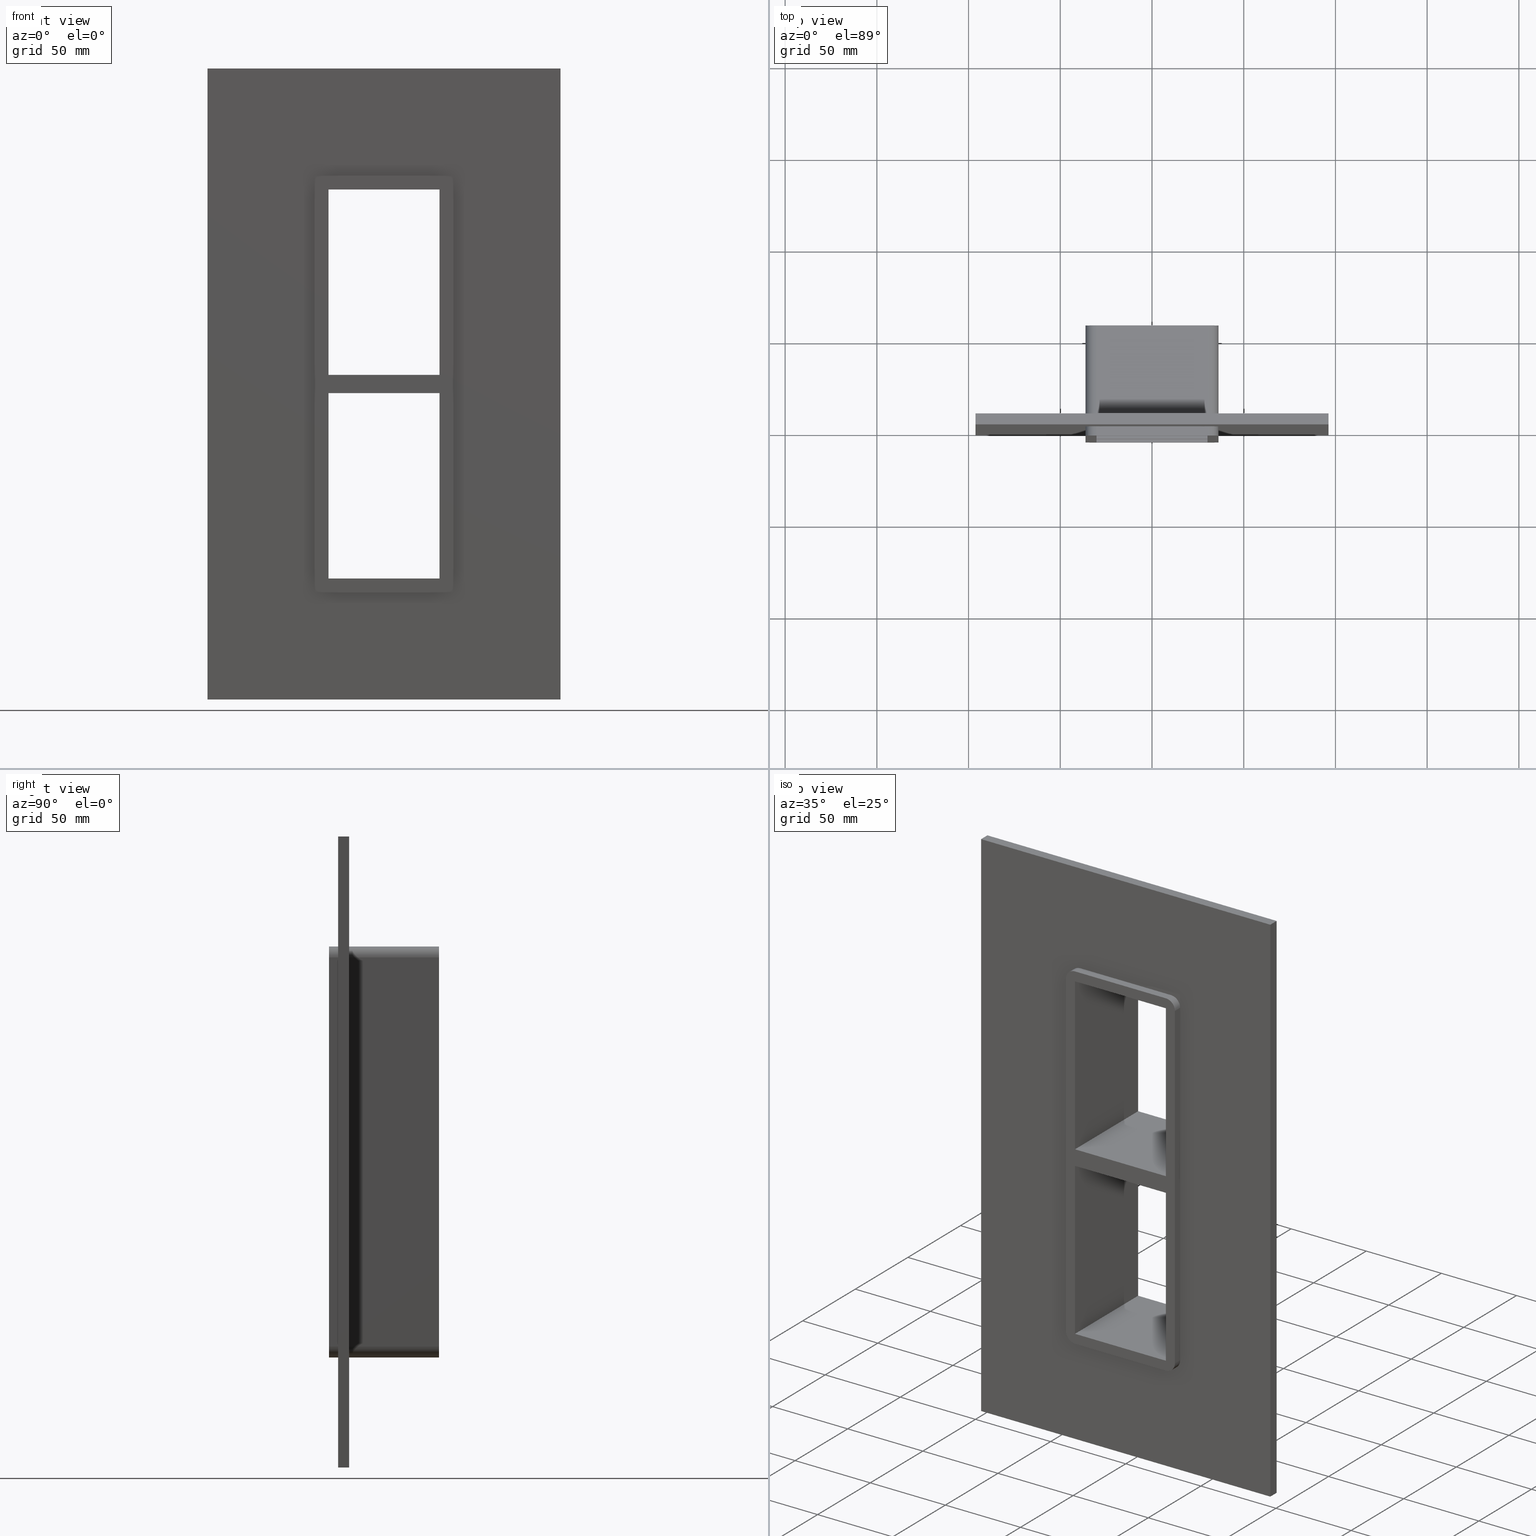
[diagram: canonical four-view strip — front | top / right | iso, engineering-drawing reading convention]
A machine part, canonical four-view strip (front | top / right | iso — engineering-drawing reading convention). The complete STEP part file that produces these views, byte-faithful:
ISO-10303-21;
HEADER;
/****************************************************************
 * Generated by software with PDElib inside                    *
 * PDElib Version v51a, created Wed 11/30/2011                  *
 * ITI Transcendata (http://www.transcendata.com/)              *
 ****************************************************************/
FILE_DESCRIPTION((''),'2;1');
FILE_NAME('C:\\RoxtecConfigurator\\CreatedFiles\\STEP\\G1+1X1.stp','2012-12-07T15:54:13',(''),(''),'Autodesk Inventor 2013','Autodesk Inventor 2013','');
FILE_SCHEMA(('AUTOMOTIVE_DESIGN { 1 0 10303 214 1 1 1 1 }'));
ENDSEC;
DATA;
#5=APPLICATION_CONTEXT('automotive design');
#6=APPLICATION_PROTOCOL_DEFINITION('International Standard','automotive_design',2001,#5);
#7=PRODUCT_CONTEXT('',#5,'mechanical');
#8=PRODUCT('roxtec S_SF_G','roxtec S_SF_G',$,(#7));
#9=PRODUCT_RELATED_PRODUCT_CATEGORY('part',$,(#8));
#10=PRODUCT_DEFINITION_FORMATION('',$,#8);
#11=PRODUCT_DEFINITION_CONTEXT('part definition',#5,'design');
#12=PRODUCT_DEFINITION('',$,#10,#11);
#18=(NAMED_UNIT(*)PLANE_ANGLE_UNIT()SI_UNIT($,.RADIAN.));
#19=DIMENSIONAL_EXPONENTS(0.0,0.0,0.0,0.0,0.0,0.0,0.0);
#20=PLANE_ANGLE_MEASURE_WITH_UNIT(PLANE_ANGLE_MEASURE(0.0174532925),#18);
#24=(CONVERSION_BASED_UNIT('DEGREE',#20)NAMED_UNIT(#19)PLANE_ANGLE_UNIT());
#28=(NAMED_UNIT(*)SI_UNIT($,.STERADIAN.)SOLID_ANGLE_UNIT());
#32=(LENGTH_UNIT()NAMED_UNIT(*)SI_UNIT(.MILLI.,.METRE.));
#34=UNCERTAINTY_MEASURE_WITH_UNIT(LENGTH_MEASURE(0.01),#32,'DISTANCE_ACCURACY_VALUE','');
#36=(GEOMETRIC_REPRESENTATION_CONTEXT(3)GLOBAL_UNCERTAINTY_ASSIGNED_CONTEXT((#34))GLOBAL_UNIT_ASSIGNED_CONTEXT((#24,#28,#32))REPRESENTATION_CONTEXT('None','None'));
#37=AXIS2_PLACEMENT_3D('',#38,#39,#40);
#38=CARTESIAN_POINT('',(0.0,0.0,0.0));
#39=DIRECTION('',(0.0,0.0,1.0));
#40=DIRECTION('',(1.0,0.0,0.0));
#41=SHAPE_REPRESENTATION('',(#37),#36);
#42=PRODUCT_DEFINITION_SHAPE('','',#12);
#43=SHAPE_DEFINITION_REPRESENTATION(#42,#41);
#49=(NAMED_UNIT(*)PLANE_ANGLE_UNIT()SI_UNIT($,.RADIAN.));
#50=DIMENSIONAL_EXPONENTS(0.0,0.0,0.0,0.0,0.0,0.0,0.0);
#51=PLANE_ANGLE_MEASURE_WITH_UNIT(PLANE_ANGLE_MEASURE(0.0174532925),#49);
#55=(CONVERSION_BASED_UNIT('DEGREE',#51)NAMED_UNIT(#50)PLANE_ANGLE_UNIT());
#59=(NAMED_UNIT(*)SI_UNIT($,.STERADIAN.)SOLID_ANGLE_UNIT());
#63=(LENGTH_UNIT()NAMED_UNIT(*)SI_UNIT(.MILLI.,.METRE.));
#65=UNCERTAINTY_MEASURE_WITH_UNIT(LENGTH_MEASURE(0.000001),#63,'DISTANCE_ACCURACY_VALUE','');
#67=(GEOMETRIC_REPRESENTATION_CONTEXT(3)GLOBAL_UNCERTAINTY_ASSIGNED_CONTEXT((#65))GLOBAL_UNIT_ASSIGNED_CONTEXT((#55,#59,#63))REPRESENTATION_CONTEXT('','3D'));
#68=CARTESIAN_POINT('',(30.250000000000004,-5.0,-5.0));
#69=DIRECTION('',(0.0,0.0,-1.0));
#70=DIRECTION('',(-1.0,0.0,0.0));
#71=AXIS2_PLACEMENT_3D('',#68,#69,#70);
#72=PLANE('',#71);
#73=CARTESIAN_POINT('',(30.250000000000004,-5.0,-5.0));
#74=VERTEX_POINT('',#73);
#75=CARTESIAN_POINT('',(-30.250000000001616,-5.0,-5.0));
#76=VERTEX_POINT('',#75);
#77=CARTESIAN_POINT('',(30.250000000000004,-5.0,-5.0));
#78=DIRECTION('',(-1.0,0.0,0.0));
#79=VECTOR('',#78,60.50000000000162);
#80=LINE('',#77,#79);
#81=EDGE_CURVE('',#74,#76,#80,.T.);
#82=ORIENTED_EDGE('',*,*,#81,.T.);
#83=CARTESIAN_POINT('',(-30.250000000001616,55.0,-5.0));
#84=VERTEX_POINT('',#83);
#85=CARTESIAN_POINT('',(-30.249999999999986,55.0,-5.0));
#86=DIRECTION('',(0.0,-1.0,0.0));
#87=VECTOR('',#86,60.0);
#88=LINE('',#85,#87);
#89=EDGE_CURVE('',#84,#76,#88,.T.);
#90=ORIENTED_EDGE('',*,*,#89,.F.);
#91=CARTESIAN_POINT('',(30.250000000000004,55.0,-5.0));
#92=VERTEX_POINT('',#91);
#93=CARTESIAN_POINT('',(30.250000000000004,55.0,-5.0));
#94=DIRECTION('',(-1.0,0.0,0.0));
#95=VECTOR('',#94,60.50000000000162);
#96=LINE('',#93,#95);
#97=EDGE_CURVE('',#92,#84,#96,.T.);
#98=ORIENTED_EDGE('',*,*,#97,.F.);
#99=CARTESIAN_POINT('',(30.250000000000004,-5.0,-5.0));
#100=DIRECTION('',(0.0,1.0,0.0));
#101=VECTOR('',#100,60.0);
#102=LINE('',#99,#101);
#103=EDGE_CURVE('',#74,#92,#102,.T.);
#104=ORIENTED_EDGE('',*,*,#103,.F.);
#105=EDGE_LOOP('',(#82,#90,#98,#104));
#106=FACE_OUTER_BOUND('',#105,.T.);
#107=ADVANCED_FACE('',(#106),#72,.T.);
#108=CARTESIAN_POINT('',(-30.249999999999986,-5.0,5.000000000000018));
#109=DIRECTION('',(0.0,0.0,1.0));
#110=DIRECTION('',(1.0,0.0,0.0));
#111=AXIS2_PLACEMENT_3D('',#108,#109,#110);
#112=PLANE('',#111);
#113=CARTESIAN_POINT('',(-30.249999999999986,-5.0,5.000000000000018));
#114=VERTEX_POINT('',#113);
#115=CARTESIAN_POINT('',(30.250000000000519,-5.0,5.0));
#116=VERTEX_POINT('',#115);
#117=CARTESIAN_POINT('',(-30.249999999999986,-5.0,5.000000000000018));
#118=DIRECTION('',(1.0,0.0,0.0));
#119=VECTOR('',#118,60.500000000000504);
#120=LINE('',#117,#119);
#121=EDGE_CURVE('',#114,#116,#120,.T.);
#122=ORIENTED_EDGE('',*,*,#121,.T.);
#123=CARTESIAN_POINT('',(30.250000000000519,55.0,5.0));
#124=VERTEX_POINT('',#123);
#125=CARTESIAN_POINT('',(30.250000000000004,55.0,5.0));
#126=DIRECTION('',(0.0,-1.0,0.0));
#127=VECTOR('',#126,60.0);
#128=LINE('',#125,#127);
#129=EDGE_CURVE('',#124,#116,#128,.T.);
#130=ORIENTED_EDGE('',*,*,#129,.F.);
#131=CARTESIAN_POINT('',(-30.249999999999986,55.0,5.000000000000018));
#132=VERTEX_POINT('',#131);
#133=CARTESIAN_POINT('',(-30.249999999999986,55.0,5.000000000000018));
#134=DIRECTION('',(1.0,0.0,0.0));
#135=VECTOR('',#134,60.500000000000504);
#136=LINE('',#133,#135);
#137=EDGE_CURVE('',#132,#124,#136,.T.);
#138=ORIENTED_EDGE('',*,*,#137,.F.);
#139=CARTESIAN_POINT('',(-30.249999999999986,-5.0,5.000000000000018));
#140=DIRECTION('',(0.0,1.0,0.0));
#141=VECTOR('',#140,60.0);
#142=LINE('',#139,#141);
#143=EDGE_CURVE('',#114,#132,#142,.T.);
#144=ORIENTED_EDGE('',*,*,#143,.F.);
#145=EDGE_LOOP('',(#122,#130,#138,#144));
#146=FACE_OUTER_BOUND('',#145,.T.);
#147=ADVANCED_FACE('',(#146),#112,.T.);
#148=CARTESIAN_POINT('',(-30.249999999999986,0.0,-106.00000000000001));
#149=DIRECTION('',(-1.0,0.0,0.0));
#150=DIRECTION('',(0.0,0.0,1.0));
#151=AXIS2_PLACEMENT_3D('',#148,#149,#150);
#152=PLANE('',#151);
#153=ORIENTED_EDGE('',*,*,#143,.T.);
#154=CARTESIAN_POINT('',(-30.249999999999986,55.0,106.00000000000001));
#155=VERTEX_POINT('',#154);
#156=CARTESIAN_POINT('',(-30.249999999999986,55.0,106.00000000000003));
#157=DIRECTION('',(0.0,0.0,-1.0));
#158=VECTOR('',#157,101.00000000000001);
#159=LINE('',#156,#158);
#160=EDGE_CURVE('',#155,#132,#159,.T.);
#161=ORIENTED_EDGE('',*,*,#160,.F.);
#162=CARTESIAN_POINT('',(-30.249999999999986,-5.0,106.00000000000001));
#163=VERTEX_POINT('',#162);
#164=CARTESIAN_POINT('',(-30.249999999999986,-5.0,106.00000000000001));
#165=DIRECTION('',(0.0,1.0,0.0));
#166=VECTOR('',#165,60.0);
#167=LINE('',#164,#166);
#168=EDGE_CURVE('',#163,#155,#167,.T.);
#169=ORIENTED_EDGE('',*,*,#168,.F.);
#170=CARTESIAN_POINT('',(-30.249999999999986,-5.0,5.000000000000014));
#171=DIRECTION('',(0.0,0.0,1.0));
#172=VECTOR('',#171,101.00000000000001);
#173=LINE('',#170,#172);
#174=EDGE_CURVE('',#114,#163,#173,.T.);
#175=ORIENTED_EDGE('',*,*,#174,.F.);
#176=EDGE_LOOP('',(#153,#161,#169,#175));
#177=FACE_OUTER_BOUND('',#176,.T.);
#178=ADVANCED_FACE('',(#177),#152,.F.);
#179=CARTESIAN_POINT('',(30.250000000000004,0.0,106.00000000000001));
#180=DIRECTION('',(1.0,0.0,0.0));
#181=DIRECTION('',(0.0,0.0,-1.0));
#182=AXIS2_PLACEMENT_3D('',#179,#180,#181);
#183=PLANE('',#182);
#184=ORIENTED_EDGE('',*,*,#103,.T.);
#185=CARTESIAN_POINT('',(30.250000000000004,55.0,-106.00000000000001));
#186=VERTEX_POINT('',#185);
#187=CARTESIAN_POINT('',(30.250000000000004,55.0,-106.00000000000001));
#188=DIRECTION('',(0.0,0.0,1.0));
#189=VECTOR('',#188,101.00000000000001);
#190=LINE('',#187,#189);
#191=EDGE_CURVE('',#186,#92,#190,.T.);
#192=ORIENTED_EDGE('',*,*,#191,.F.);
#193=CARTESIAN_POINT('',(30.250000000000004,-5.0,-106.00000000000001));
#194=VERTEX_POINT('',#193);
#195=CARTESIAN_POINT('',(30.250000000000004,55.0,-106.00000000000001));
#196=DIRECTION('',(0.0,-1.0,0.0));
#197=VECTOR('',#196,60.0);
#198=LINE('',#195,#197);
#199=EDGE_CURVE('',#186,#194,#198,.T.);
#200=ORIENTED_EDGE('',*,*,#199,.T.);
#201=CARTESIAN_POINT('',(30.250000000000004,-5.0,-5.0));
#202=DIRECTION('',(0.0,0.0,-1.0));
#203=VECTOR('',#202,101.00000000000001);
#204=LINE('',#201,#203);
#205=EDGE_CURVE('',#74,#194,#204,.T.);
#206=ORIENTED_EDGE('',*,*,#205,.F.);
#207=EDGE_LOOP('',(#184,#192,#200,#206));
#208=FACE_OUTER_BOUND('',#207,.T.);
#209=ADVANCED_FACE('',(#208),#183,.F.);
#210=CARTESIAN_POINT('',(30.250000000000004,0.0,106.00000000000001));
#211=DIRECTION('',(1.0,0.0,0.0));
#212=DIRECTION('',(0.0,0.0,-1.0));
#213=AXIS2_PLACEMENT_3D('',#210,#211,#212);
#214=PLANE('',#213);
#215=ORIENTED_EDGE('',*,*,#129,.T.);
#216=CARTESIAN_POINT('',(30.250000000000004,-5.0,106.00000000000001));
#217=VERTEX_POINT('',#216);
#218=CARTESIAN_POINT('',(30.250000000000004,-5.0,106.00000000000001));
#219=DIRECTION('',(0.0,0.0,-1.0));
#220=VECTOR('',#219,101.00000000000001);
#221=LINE('',#218,#220);
#222=EDGE_CURVE('',#217,#116,#221,.T.);
#223=ORIENTED_EDGE('',*,*,#222,.F.);
#224=CARTESIAN_POINT('',(30.250000000000004,55.0,106.00000000000001));
#225=VERTEX_POINT('',#224);
#226=CARTESIAN_POINT('',(30.250000000000004,-5.0,106.00000000000001));
#227=DIRECTION('',(0.0,1.0,0.0));
#228=VECTOR('',#227,60.0);
#229=LINE('',#226,#228);
#230=EDGE_CURVE('',#217,#225,#229,.T.);
#231=ORIENTED_EDGE('',*,*,#230,.T.);
#232=CARTESIAN_POINT('',(30.250000000000004,55.0,5.0));
#233=DIRECTION('',(0.0,0.0,1.0));
#234=VECTOR('',#233,101.00000000000001);
#235=LINE('',#232,#234);
#236=EDGE_CURVE('',#124,#225,#235,.T.);
#237=ORIENTED_EDGE('',*,*,#236,.F.);
#238=EDGE_LOOP('',(#215,#223,#231,#237));
#239=FACE_OUTER_BOUND('',#238,.T.);
#240=ADVANCED_FACE('',(#239),#214,.F.);
#241=CARTESIAN_POINT('',(0.0,6.000000000000001,1.986606E-014));
#242=DIRECTION('',(0.0,1.0,0.0));
#243=DIRECTION('',(0.0,0.0,1.0));
#244=AXIS2_PLACEMENT_3D('',#241,#242,#243);
#245=PLANE('',#244);
#246=CARTESIAN_POINT('',(96.25,6.000000000000001,-172.0));
#247=VERTEX_POINT('',#246);
#248=CARTESIAN_POINT('',(-96.25,6.000000000000001,-172.0));
#249=VERTEX_POINT('',#248);
#250=CARTESIAN_POINT('',(96.25,6.000000000000001,-172.0));
#251=DIRECTION('',(-1.0,0.0,0.0));
#252=VECTOR('',#251,192.5);
#253=LINE('',#250,#252);
#254=EDGE_CURVE('',#247,#249,#253,.T.);
#255=ORIENTED_EDGE('',*,*,#254,.T.);
#256=CARTESIAN_POINT('',(-96.25,6.000000000000001,172.00000000000006));
#257=VERTEX_POINT('',#256);
#258=CARTESIAN_POINT('',(-96.25,6.000000000000001,-172.0));
#259=DIRECTION('',(0.0,0.0,1.0));
#260=VECTOR('',#259,344.00000000000006);
#261=LINE('',#258,#260);
#262=EDGE_CURVE('',#249,#257,#261,.T.);
#263=ORIENTED_EDGE('',*,*,#262,.T.);
#264=CARTESIAN_POINT('',(96.25,6.000000000000001,172.00000000000006));
#265=VERTEX_POINT('',#264);
#266=CARTESIAN_POINT('',(-96.25,6.000000000000001,172.00000000000003));
#267=DIRECTION('',(1.0,0.0,0.0));
#268=VECTOR('',#267,192.5);
#269=LINE('',#266,#268);
#270=EDGE_CURVE('',#257,#265,#269,.T.);
#271=ORIENTED_EDGE('',*,*,#270,.T.);
#272=CARTESIAN_POINT('',(96.25,6.000000000000001,172.00000000000003));
#273=DIRECTION('',(0.0,0.0,-1.0));
#274=VECTOR('',#273,344.00000000000006);
#275=LINE('',#272,#274);
#276=EDGE_CURVE('',#265,#247,#275,.T.);
#277=ORIENTED_EDGE('',*,*,#276,.T.);
#278=EDGE_LOOP('',(#255,#263,#271,#277));
#279=FACE_OUTER_BOUND('',#278,.T.);
#280=CARTESIAN_POINT('',(30.249999999999986,6.000000000000001,112.00000000000003));
#281=VERTEX_POINT('',#280);
#282=CARTESIAN_POINT('',(36.25,6.000000000000001,106.00000000000001));
#283=VERTEX_POINT('',#282);
#284=CARTESIAN_POINT('',(30.249999999999986,6.000000000000001,106.00000000000001));
#285=DIRECTION('',(0.0,1.0,0.0));
#286=DIRECTION('',(0.0,0.0,1.0));
#287=AXIS2_PLACEMENT_3D('',#284,#285,#286);
#288=CIRCLE('',#287,6.000000000000014);
#289=EDGE_CURVE('',#281,#283,#288,.T.);
#290=ORIENTED_EDGE('',*,*,#289,.F.);
#291=CARTESIAN_POINT('',(-30.249999999999986,6.000000000000001,112.00000000000003));
#292=VERTEX_POINT('',#291);
#293=CARTESIAN_POINT('',(-30.249999999999986,6.000000000000001,112.00000000000003));
#294=DIRECTION('',(1.0,0.0,0.0));
#295=VECTOR('',#294,60.499999999999972);
#296=LINE('',#293,#295);
#297=EDGE_CURVE('',#292,#281,#296,.T.);
#298=ORIENTED_EDGE('',*,*,#297,.F.);
#299=CARTESIAN_POINT('',(-36.25,6.000000000000001,106.00000000000001));
#300=VERTEX_POINT('',#299);
#301=CARTESIAN_POINT('',(-30.249999999999986,6.000000000000001,106.00000000000001));
#302=DIRECTION('',(0.0,1.0,0.0));
#303=DIRECTION('',(-1.0,0.0,0.0));
#304=AXIS2_PLACEMENT_3D('',#301,#302,#303);
#305=CIRCLE('',#304,6.000000000000014);
#306=EDGE_CURVE('',#300,#292,#305,.T.);
#307=ORIENTED_EDGE('',*,*,#306,.F.);
#308=CARTESIAN_POINT('',(-36.25,6.000000000000001,-105.99999999999997));
#309=VERTEX_POINT('',#308);
#310=CARTESIAN_POINT('',(-36.25,6.000000000000001,-105.99999999999997));
#311=DIRECTION('',(0.0,0.0,1.0));
#312=VECTOR('',#311,212.0);
#313=LINE('',#310,#312);
#314=EDGE_CURVE('',#309,#300,#313,.T.);
#315=ORIENTED_EDGE('',*,*,#314,.F.);
#316=CARTESIAN_POINT('',(-30.249999999999986,6.000000000000001,-112.0));
#317=VERTEX_POINT('',#316);
#318=CARTESIAN_POINT('',(-30.249999999999986,6.000000000000001,-105.99999999999997));
#319=DIRECTION('',(0.0,1.0,0.0));
#320=DIRECTION('',(0.0,0.0,-1.0));
#321=AXIS2_PLACEMENT_3D('',#318,#319,#320);
#322=CIRCLE('',#321,6.000000000000014);
#323=EDGE_CURVE('',#317,#309,#322,.T.);
#324=ORIENTED_EDGE('',*,*,#323,.F.);
#325=CARTESIAN_POINT('',(30.249999999999986,6.000000000000001,-112.0));
#326=VERTEX_POINT('',#325);
#327=CARTESIAN_POINT('',(30.249999999999986,6.000000000000001,-112.0));
#328=DIRECTION('',(-1.0,0.0,0.0));
#329=VECTOR('',#328,60.499999999999972);
#330=LINE('',#327,#329);
#331=EDGE_CURVE('',#326,#317,#330,.T.);
#332=ORIENTED_EDGE('',*,*,#331,.F.);
#333=CARTESIAN_POINT('',(36.25,6.000000000000001,-105.99999999999997));
#334=VERTEX_POINT('',#333);
#335=CARTESIAN_POINT('',(30.249999999999986,6.000000000000001,-105.99999999999997));
#336=DIRECTION('',(0.0,1.0,0.0));
#337=DIRECTION('',(1.0,0.0,0.0));
#338=AXIS2_PLACEMENT_3D('',#335,#336,#337);
#339=CIRCLE('',#338,6.000000000000014);
#340=EDGE_CURVE('',#334,#326,#339,.T.);
#341=ORIENTED_EDGE('',*,*,#340,.F.);
#342=CARTESIAN_POINT('',(36.25,6.000000000000001,106.00000000000001));
#343=DIRECTION('',(0.0,0.0,-1.0));
#344=VECTOR('',#343,212.0);
#345=LINE('',#342,#344);
#346=EDGE_CURVE('',#283,#334,#345,.T.);
#347=ORIENTED_EDGE('',*,*,#346,.F.);
#348=EDGE_LOOP('',(#290,#298,#307,#315,#324,#332,#341,#347));
#349=FACE_BOUND('',#348,.T.);
#350=ADVANCED_FACE('',(#279,#349),#245,.T.);
#351=CARTESIAN_POINT('',(0.0,0.0,1.986606E-014));
#352=DIRECTION('',(0.0,1.0,0.0));
#353=DIRECTION('',(0.0,0.0,1.0));
#354=AXIS2_PLACEMENT_3D('',#351,#352,#353);
#355=PLANE('',#354);
#356=CARTESIAN_POINT('',(96.25,0.0,-172.0));
#357=VERTEX_POINT('',#356);
#358=CARTESIAN_POINT('',(-96.25,0.0,-172.0));
#359=VERTEX_POINT('',#358);
#360=CARTESIAN_POINT('',(96.25,0.0,-172.0));
#361=DIRECTION('',(-1.0,0.0,0.0));
#362=VECTOR('',#361,192.5);
#363=LINE('',#360,#362);
#364=EDGE_CURVE('',#357,#359,#363,.T.);
#365=ORIENTED_EDGE('',*,*,#364,.F.);
#366=CARTESIAN_POINT('',(96.25,0.0,172.00000000000003));
#367=VERTEX_POINT('',#366);
#368=CARTESIAN_POINT('',(96.25,0.0,172.00000000000003));
#369=DIRECTION('',(0.0,0.0,-1.0));
#370=VECTOR('',#369,344.00000000000006);
#371=LINE('',#368,#370);
#372=EDGE_CURVE('',#367,#357,#371,.T.);
#373=ORIENTED_EDGE('',*,*,#372,.F.);
#374=CARTESIAN_POINT('',(-96.25,0.0,172.00000000000003));
#375=VERTEX_POINT('',#374);
#376=CARTESIAN_POINT('',(-96.25,0.0,172.00000000000003));
#377=DIRECTION('',(1.0,0.0,0.0));
#378=VECTOR('',#377,192.5);
#379=LINE('',#376,#378);
#380=EDGE_CURVE('',#375,#367,#379,.T.);
#381=ORIENTED_EDGE('',*,*,#380,.F.);
#382=CARTESIAN_POINT('',(-96.25,0.0,-172.0));
#383=DIRECTION('',(0.0,0.0,1.0));
#384=VECTOR('',#383,344.00000000000006);
#385=LINE('',#382,#384);
#386=EDGE_CURVE('',#359,#375,#385,.T.);
#387=ORIENTED_EDGE('',*,*,#386,.F.);
#388=EDGE_LOOP('',(#365,#373,#381,#387));
#389=FACE_OUTER_BOUND('',#388,.T.);
#390=CARTESIAN_POINT('',(36.25,0.0,106.00000000000001));
#391=VERTEX_POINT('',#390);
#392=CARTESIAN_POINT('',(30.249999999999986,0.0,112.00000000000003));
#393=VERTEX_POINT('',#392);
#394=CARTESIAN_POINT('',(30.249999999999986,0.0,106.00000000000001));
#395=DIRECTION('',(0.0,-1.0,0.0));
#396=DIRECTION('',(0.0,0.0,1.0));
#397=AXIS2_PLACEMENT_3D('',#394,#395,#396);
#398=CIRCLE('',#397,6.000000000000014);
#399=EDGE_CURVE('',#391,#393,#398,.T.);
#400=ORIENTED_EDGE('',*,*,#399,.F.);
#401=CARTESIAN_POINT('',(36.25,0.0,-105.99999999999997));
#402=VERTEX_POINT('',#401);
#403=CARTESIAN_POINT('',(36.25,0.0,-105.99999999999999));
#404=DIRECTION('',(0.0,0.0,1.0));
#405=VECTOR('',#404,212.0);
#406=LINE('',#403,#405);
#407=EDGE_CURVE('',#402,#391,#406,.T.);
#408=ORIENTED_EDGE('',*,*,#407,.F.);
#409=CARTESIAN_POINT('',(30.249999999999986,0.0,-112.0));
#410=VERTEX_POINT('',#409);
#411=CARTESIAN_POINT('',(30.249999999999986,0.0,-105.99999999999997));
#412=DIRECTION('',(0.0,-1.0,0.0));
#413=DIRECTION('',(1.0,0.0,0.0));
#414=AXIS2_PLACEMENT_3D('',#411,#412,#413);
#415=CIRCLE('',#414,6.000000000000014);
#416=EDGE_CURVE('',#410,#402,#415,.T.);
#417=ORIENTED_EDGE('',*,*,#416,.F.);
#418=CARTESIAN_POINT('',(-30.249999999999986,0.0,-112.0));
#419=VERTEX_POINT('',#418);
#420=CARTESIAN_POINT('',(-30.249999999999986,0.0,-112.0));
#421=DIRECTION('',(1.0,0.0,0.0));
#422=VECTOR('',#421,60.499999999999972);
#423=LINE('',#420,#422);
#424=EDGE_CURVE('',#419,#410,#423,.T.);
#425=ORIENTED_EDGE('',*,*,#424,.F.);
#426=CARTESIAN_POINT('',(-36.25,0.0,-105.99999999999997));
#427=VERTEX_POINT('',#426);
#428=CARTESIAN_POINT('',(-30.249999999999986,0.0,-105.99999999999997));
#429=DIRECTION('',(0.0,-1.0,0.0));
#430=DIRECTION('',(0.0,0.0,-1.0));
#431=AXIS2_PLACEMENT_3D('',#428,#429,#430);
#432=CIRCLE('',#431,6.000000000000014);
#433=EDGE_CURVE('',#427,#419,#432,.T.);
#434=ORIENTED_EDGE('',*,*,#433,.F.);
#435=CARTESIAN_POINT('',(-36.25,0.0,106.00000000000001));
#436=VERTEX_POINT('',#435);
#437=CARTESIAN_POINT('',(-36.25,0.0,106.00000000000003));
#438=DIRECTION('',(0.0,0.0,-1.0));
#439=VECTOR('',#438,212.0);
#440=LINE('',#437,#439);
#441=EDGE_CURVE('',#436,#427,#440,.T.);
#442=ORIENTED_EDGE('',*,*,#441,.F.);
#443=CARTESIAN_POINT('',(-30.249999999999986,0.0,112.00000000000003));
#444=VERTEX_POINT('',#443);
#445=CARTESIAN_POINT('',(-30.249999999999986,0.0,106.00000000000001));
#446=DIRECTION('',(0.0,-1.0,0.0));
#447=DIRECTION('',(-1.0,0.0,0.0));
#448=AXIS2_PLACEMENT_3D('',#445,#446,#447);
#449=CIRCLE('',#448,6.000000000000014);
#450=EDGE_CURVE('',#444,#436,#449,.T.);
#451=ORIENTED_EDGE('',*,*,#450,.F.);
#452=CARTESIAN_POINT('',(30.249999999999986,0.0,112.00000000000003));
#453=DIRECTION('',(-1.0,0.0,0.0));
#454=VECTOR('',#453,60.499999999999972);
#455=LINE('',#452,#454);
#456=EDGE_CURVE('',#393,#444,#455,.T.);
#457=ORIENTED_EDGE('',*,*,#456,.F.);
#458=EDGE_LOOP('',(#400,#408,#417,#425,#434,#442,#451,#457));
#459=FACE_BOUND('',#458,.T.);
#460=ADVANCED_FACE('',(#389,#459),#355,.F.);
#461=CARTESIAN_POINT('',(96.25,0.0,172.00000000000003));
#462=DIRECTION('',(1.0,0.0,0.0));
#463=DIRECTION('',(0.0,0.0,-1.0));
#464=AXIS2_PLACEMENT_3D('',#461,#462,#463);
#465=PLANE('',#464);
#466=ORIENTED_EDGE('',*,*,#372,.T.);
#467=CARTESIAN_POINT('',(96.25,0.0,-172.0));
#468=DIRECTION('',(0.0,1.0,0.0));
#469=VECTOR('',#468,6.000000000000001);
#470=LINE('',#467,#469);
#471=EDGE_CURVE('',#357,#247,#470,.T.);
#472=ORIENTED_EDGE('',*,*,#471,.T.);
#473=ORIENTED_EDGE('',*,*,#276,.F.);
#474=CARTESIAN_POINT('',(96.25,0.0,172.00000000000003));
#475=DIRECTION('',(0.0,1.0,0.0));
#476=VECTOR('',#475,6.000000000000001);
#477=LINE('',#474,#476);
#478=EDGE_CURVE('',#367,#265,#477,.T.);
#479=ORIENTED_EDGE('',*,*,#478,.F.);
#480=EDGE_LOOP('',(#466,#472,#473,#479));
#481=FACE_OUTER_BOUND('',#480,.T.);
#482=ADVANCED_FACE('',(#481),#465,.T.);
#483=CARTESIAN_POINT('',(-96.25,0.0,172.00000000000003));
#484=DIRECTION('',(0.0,0.0,1.0));
#485=DIRECTION('',(1.0,0.0,0.0));
#486=AXIS2_PLACEMENT_3D('',#483,#484,#485);
#487=PLANE('',#486);
#488=ORIENTED_EDGE('',*,*,#380,.T.);
#489=ORIENTED_EDGE('',*,*,#478,.T.);
#490=ORIENTED_EDGE('',*,*,#270,.F.);
#491=CARTESIAN_POINT('',(-96.25,0.0,172.00000000000003));
#492=DIRECTION('',(0.0,1.0,0.0));
#493=VECTOR('',#492,6.000000000000001);
#494=LINE('',#491,#493);
#495=EDGE_CURVE('',#375,#257,#494,.T.);
#496=ORIENTED_EDGE('',*,*,#495,.F.);
#497=EDGE_LOOP('',(#488,#489,#490,#496));
#498=FACE_OUTER_BOUND('',#497,.T.);
#499=ADVANCED_FACE('',(#498),#487,.T.);
#500=CARTESIAN_POINT('',(-96.25,0.0,-172.0));
#501=DIRECTION('',(-1.0,0.0,0.0));
#502=DIRECTION('',(0.0,0.0,1.0));
#503=AXIS2_PLACEMENT_3D('',#500,#501,#502);
#504=PLANE('',#503);
#505=ORIENTED_EDGE('',*,*,#386,.T.);
#506=ORIENTED_EDGE('',*,*,#495,.T.);
#507=ORIENTED_EDGE('',*,*,#262,.F.);
#508=CARTESIAN_POINT('',(-96.25,0.0,-172.0));
#509=DIRECTION('',(0.0,1.0,0.0));
#510=VECTOR('',#509,6.000000000000001);
#511=LINE('',#508,#510);
#512=EDGE_CURVE('',#359,#249,#511,.T.);
#513=ORIENTED_EDGE('',*,*,#512,.F.);
#514=EDGE_LOOP('',(#505,#506,#507,#513));
#515=FACE_OUTER_BOUND('',#514,.T.);
#516=ADVANCED_FACE('',(#515),#504,.T.);
#517=CARTESIAN_POINT('',(96.25,0.0,-172.0));
#518=DIRECTION('',(0.0,0.0,-1.0));
#519=DIRECTION('',(-1.0,0.0,0.0));
#520=AXIS2_PLACEMENT_3D('',#517,#518,#519);
#521=PLANE('',#520);
#522=ORIENTED_EDGE('',*,*,#364,.T.);
#523=ORIENTED_EDGE('',*,*,#512,.T.);
#524=ORIENTED_EDGE('',*,*,#254,.F.);
#525=ORIENTED_EDGE('',*,*,#471,.F.);
#526=EDGE_LOOP('',(#522,#523,#524,#525));
#527=FACE_OUTER_BOUND('',#526,.T.);
#528=ADVANCED_FACE('',(#527),#521,.T.);
#529=CARTESIAN_POINT('',(-30.249999999999986,0.0,-106.00000000000001));
#530=DIRECTION('',(-1.0,0.0,0.0));
#531=DIRECTION('',(0.0,0.0,1.0));
#532=AXIS2_PLACEMENT_3D('',#529,#530,#531);
#533=PLANE('',#532);
#534=ORIENTED_EDGE('',*,*,#89,.T.);
#535=CARTESIAN_POINT('',(-30.249999999999986,-5.0,-106.00000000000001));
#536=VERTEX_POINT('',#535);
#537=CARTESIAN_POINT('',(-30.249999999999986,-5.0,-106.00000000000001));
#538=DIRECTION('',(0.0,0.0,1.0));
#539=VECTOR('',#538,101.00000000000001);
#540=LINE('',#537,#539);
#541=EDGE_CURVE('',#536,#76,#540,.T.);
#542=ORIENTED_EDGE('',*,*,#541,.F.);
#543=CARTESIAN_POINT('',(-30.249999999999986,55.0,-106.00000000000001));
#544=VERTEX_POINT('',#543);
#545=CARTESIAN_POINT('',(-30.249999999999986,-5.0,-106.00000000000001));
#546=DIRECTION('',(0.0,1.0,0.0));
#547=VECTOR('',#546,60.0);
#548=LINE('',#545,#547);
#549=EDGE_CURVE('',#536,#544,#548,.T.);
#550=ORIENTED_EDGE('',*,*,#549,.T.);
#551=CARTESIAN_POINT('',(-30.249999999999986,55.0,-5.0));
#552=DIRECTION('',(0.0,0.0,-1.0));
#553=VECTOR('',#552,101.00000000000001);
#554=LINE('',#551,#553);
#555=EDGE_CURVE('',#84,#544,#554,.T.);
#556=ORIENTED_EDGE('',*,*,#555,.F.);
#557=EDGE_LOOP('',(#534,#542,#550,#556));
#558=FACE_OUTER_BOUND('',#557,.T.);
#559=ADVANCED_FACE('',(#558),#533,.F.);
#560=CARTESIAN_POINT('',(-30.249999999999986,0.0,-105.99999999999997));
#561=DIRECTION('',(0.0,1.0,0.0));
#562=DIRECTION('',(0.0,0.0,-1.0));
#563=AXIS2_PLACEMENT_3D('',#560,#561,#562);
#564=CYLINDRICAL_SURFACE('',#563,6.000000000000014);
#565=ORIENTED_EDGE('',*,*,#433,.T.);
#566=CARTESIAN_POINT('',(-30.249999999999986,-5.0,-112.0));
#567=VERTEX_POINT('',#566);
#568=CARTESIAN_POINT('',(-30.249999999999986,-5.0,-112.0));
#569=DIRECTION('',(0.0,1.0,0.0));
#570=VECTOR('',#569,5.0);
#571=LINE('',#568,#570);
#572=EDGE_CURVE('',#567,#419,#571,.T.);
#573=ORIENTED_EDGE('',*,*,#572,.F.);
#574=CARTESIAN_POINT('',(-36.25,-5.0,-105.99999999999997));
#575=VERTEX_POINT('',#574);
#576=CARTESIAN_POINT('',(-30.249999999999986,-5.0,-105.99999999999997));
#577=DIRECTION('',(0.0,-1.0,0.0));
#578=DIRECTION('',(0.0,0.0,-1.0));
#579=AXIS2_PLACEMENT_3D('',#576,#577,#578);
#580=CIRCLE('',#579,6.000000000000014);
#581=EDGE_CURVE('',#575,#567,#580,.T.);
#582=ORIENTED_EDGE('',*,*,#581,.F.);
#583=CARTESIAN_POINT('',(-36.25,-5.0,-105.99999999999997));
#584=DIRECTION('',(0.0,1.0,0.0));
#585=VECTOR('',#584,5.0);
#586=LINE('',#583,#585);
#587=EDGE_CURVE('',#575,#427,#586,.T.);
#588=ORIENTED_EDGE('',*,*,#587,.T.);
#589=EDGE_LOOP('',(#565,#573,#582,#588));
#590=FACE_OUTER_BOUND('',#589,.T.);
#591=ADVANCED_FACE('',(#590),#564,.T.);
#592=CARTESIAN_POINT('',(-30.249999999999986,0.0,-105.99999999999997));
#593=DIRECTION('',(0.0,1.0,0.0));
#594=DIRECTION('',(0.0,0.0,-1.0));
#595=AXIS2_PLACEMENT_3D('',#592,#593,#594);
#596=CYLINDRICAL_SURFACE('',#595,6.000000000000014);
#597=ORIENTED_EDGE('',*,*,#323,.T.);
#598=CARTESIAN_POINT('',(-36.25,55.0,-105.99999999999997));
#599=VERTEX_POINT('',#598);
#600=CARTESIAN_POINT('',(-36.25,6.000000000000001,-105.99999999999997));
#601=DIRECTION('',(0.0,1.0,0.0));
#602=VECTOR('',#601,49.0);
#603=LINE('',#600,#602);
#604=EDGE_CURVE('',#309,#599,#603,.T.);
#605=ORIENTED_EDGE('',*,*,#604,.T.);
#606=CARTESIAN_POINT('',(-30.249999999999986,55.0,-112.0));
#607=VERTEX_POINT('',#606);
#608=CARTESIAN_POINT('',(-30.249999999999986,55.0,-105.99999999999997));
#609=DIRECTION('',(0.0,1.0,0.0));
#610=DIRECTION('',(0.0,0.0,-1.0));
#611=AXIS2_PLACEMENT_3D('',#608,#609,#610);
#612=CIRCLE('',#611,6.000000000000014);
#613=EDGE_CURVE('',#607,#599,#612,.T.);
#614=ORIENTED_EDGE('',*,*,#613,.F.);
#615=CARTESIAN_POINT('',(-30.249999999999986,6.000000000000001,-112.0));
#616=DIRECTION('',(0.0,1.0,0.0));
#617=VECTOR('',#616,49.0);
#618=LINE('',#615,#617);
#619=EDGE_CURVE('',#317,#607,#618,.T.);
#620=ORIENTED_EDGE('',*,*,#619,.F.);
#621=EDGE_LOOP('',(#597,#605,#614,#620));
#622=FACE_OUTER_BOUND('',#621,.T.);
#623=ADVANCED_FACE('',(#622),#596,.T.);
#624=CARTESIAN_POINT('',(-36.25,0.0,-105.99999999999997));
#625=DIRECTION('',(-1.0,0.0,0.0));
#626=DIRECTION('',(0.0,0.0,1.0));
#627=AXIS2_PLACEMENT_3D('',#624,#625,#626);
#628=PLANE('',#627);
#629=ORIENTED_EDGE('',*,*,#441,.T.);
#630=ORIENTED_EDGE('',*,*,#587,.F.);
#631=CARTESIAN_POINT('',(-36.25,-5.0,106.00000000000001));
#632=VERTEX_POINT('',#631);
#633=CARTESIAN_POINT('',(-36.25,-5.0,106.00000000000003));
#634=DIRECTION('',(0.0,0.0,-1.0));
#635=VECTOR('',#634,212.0);
#636=LINE('',#633,#635);
#637=EDGE_CURVE('',#632,#575,#636,.T.);
#638=ORIENTED_EDGE('',*,*,#637,.F.);
#639=CARTESIAN_POINT('',(-36.25,-5.0,106.00000000000001));
#640=DIRECTION('',(0.0,1.0,0.0));
#641=VECTOR('',#640,5.0);
#642=LINE('',#639,#641);
#643=EDGE_CURVE('',#632,#436,#642,.T.);
#644=ORIENTED_EDGE('',*,*,#643,.T.);
#645=EDGE_LOOP('',(#629,#630,#638,#644));
#646=FACE_OUTER_BOUND('',#645,.T.);
#647=ADVANCED_FACE('',(#646),#628,.T.);
#648=CARTESIAN_POINT('',(-36.25,0.0,-105.99999999999997));
#649=DIRECTION('',(-1.0,0.0,0.0));
#650=DIRECTION('',(0.0,0.0,1.0));
#651=AXIS2_PLACEMENT_3D('',#648,#649,#650);
#652=PLANE('',#651);
#653=ORIENTED_EDGE('',*,*,#314,.T.);
#654=CARTESIAN_POINT('',(-36.25,55.0,106.00000000000001));
#655=VERTEX_POINT('',#654);
#656=CARTESIAN_POINT('',(-36.25,6.000000000000001,106.00000000000001));
#657=DIRECTION('',(0.0,1.0,0.0));
#658=VECTOR('',#657,49.0);
#659=LINE('',#656,#658);
#660=EDGE_CURVE('',#300,#655,#659,.T.);
#661=ORIENTED_EDGE('',*,*,#660,.T.);
#662=CARTESIAN_POINT('',(-36.25,55.0,-105.99999999999997));
#663=DIRECTION('',(0.0,0.0,1.0));
#664=VECTOR('',#663,212.0);
#665=LINE('',#662,#664);
#666=EDGE_CURVE('',#599,#655,#665,.T.);
#667=ORIENTED_EDGE('',*,*,#666,.F.);
#668=ORIENTED_EDGE('',*,*,#604,.F.);
#669=EDGE_LOOP('',(#653,#661,#667,#668));
#670=FACE_OUTER_BOUND('',#669,.T.);
#671=ADVANCED_FACE('',(#670),#652,.T.);
#672=CARTESIAN_POINT('',(30.249999999999986,0.0,-112.0));
#673=DIRECTION('',(0.0,0.0,-1.0));
#674=DIRECTION('',(-1.0,0.0,0.0));
#675=AXIS2_PLACEMENT_3D('',#672,#673,#674);
#676=PLANE('',#675);
#677=ORIENTED_EDGE('',*,*,#424,.T.);
#678=CARTESIAN_POINT('',(30.249999999999986,-5.0,-112.0));
#679=VERTEX_POINT('',#678);
#680=CARTESIAN_POINT('',(30.249999999999986,-5.0,-112.0));
#681=DIRECTION('',(0.0,1.0,0.0));
#682=VECTOR('',#681,5.0);
#683=LINE('',#680,#682);
#684=EDGE_CURVE('',#679,#410,#683,.T.);
#685=ORIENTED_EDGE('',*,*,#684,.F.);
#686=CARTESIAN_POINT('',(-30.249999999999986,-5.0,-112.0));
#687=DIRECTION('',(1.0,0.0,0.0));
#688=VECTOR('',#687,60.499999999999972);
#689=LINE('',#686,#688);
#690=EDGE_CURVE('',#567,#679,#689,.T.);
#691=ORIENTED_EDGE('',*,*,#690,.F.);
#692=ORIENTED_EDGE('',*,*,#572,.T.);
#693=EDGE_LOOP('',(#677,#685,#691,#692));
#694=FACE_OUTER_BOUND('',#693,.T.);
#695=ADVANCED_FACE('',(#694),#676,.T.);
#696=CARTESIAN_POINT('',(-30.249999999999986,0.0,106.00000000000001));
#697=DIRECTION('',(0.0,1.0,0.0));
#698=DIRECTION('',(-1.0,0.0,0.0));
#699=AXIS2_PLACEMENT_3D('',#696,#697,#698);
#700=CYLINDRICAL_SURFACE('',#699,6.000000000000014);
#701=ORIENTED_EDGE('',*,*,#450,.T.);
#702=ORIENTED_EDGE('',*,*,#643,.F.);
#703=CARTESIAN_POINT('',(-30.249999999999986,-5.0,112.00000000000003));
#704=VERTEX_POINT('',#703);
#705=CARTESIAN_POINT('',(-30.249999999999986,-5.0,106.00000000000001));
#706=DIRECTION('',(0.0,-1.0,0.0));
#707=DIRECTION('',(-1.0,0.0,0.0));
#708=AXIS2_PLACEMENT_3D('',#705,#706,#707);
#709=CIRCLE('',#708,6.000000000000014);
#710=EDGE_CURVE('',#704,#632,#709,.T.);
#711=ORIENTED_EDGE('',*,*,#710,.F.);
#712=CARTESIAN_POINT('',(-30.249999999999986,-5.0,112.00000000000003));
#713=DIRECTION('',(0.0,1.0,0.0));
#714=VECTOR('',#713,5.0);
#715=LINE('',#712,#714);
#716=EDGE_CURVE('',#704,#444,#715,.T.);
#717=ORIENTED_EDGE('',*,*,#716,.T.);
#718=EDGE_LOOP('',(#701,#702,#711,#717));
#719=FACE_OUTER_BOUND('',#718,.T.);
#720=ADVANCED_FACE('',(#719),#700,.T.);
#721=CARTESIAN_POINT('',(-30.249999999999986,0.0,106.00000000000001));
#722=DIRECTION('',(0.0,1.0,0.0));
#723=DIRECTION('',(-1.0,0.0,0.0));
#724=AXIS2_PLACEMENT_3D('',#721,#722,#723);
#725=CYLINDRICAL_SURFACE('',#724,6.000000000000014);
#726=ORIENTED_EDGE('',*,*,#306,.T.);
#727=CARTESIAN_POINT('',(-30.249999999999986,55.0,112.00000000000003));
#728=VERTEX_POINT('',#727);
#729=CARTESIAN_POINT('',(-30.249999999999986,6.000000000000001,112.00000000000003));
#730=DIRECTION('',(0.0,1.0,0.0));
#731=VECTOR('',#730,49.0);
#732=LINE('',#729,#731);
#733=EDGE_CURVE('',#292,#728,#732,.T.);
#734=ORIENTED_EDGE('',*,*,#733,.T.);
#735=CARTESIAN_POINT('',(-30.249999999999986,55.0,106.00000000000001));
#736=DIRECTION('',(0.0,1.0,0.0));
#737=DIRECTION('',(-1.0,0.0,0.0));
#738=AXIS2_PLACEMENT_3D('',#735,#736,#737);
#739=CIRCLE('',#738,6.000000000000014);
#740=EDGE_CURVE('',#655,#728,#739,.T.);
#741=ORIENTED_EDGE('',*,*,#740,.F.);
#742=ORIENTED_EDGE('',*,*,#660,.F.);
#743=EDGE_LOOP('',(#726,#734,#741,#742));
#744=FACE_OUTER_BOUND('',#743,.T.);
#745=ADVANCED_FACE('',(#744),#725,.T.);
#746=CARTESIAN_POINT('',(30.249999999999986,0.0,-105.99999999999997));
#747=DIRECTION('',(0.0,1.0,0.0));
#748=DIRECTION('',(1.0,0.0,0.0));
#749=AXIS2_PLACEMENT_3D('',#746,#747,#748);
#750=CYLINDRICAL_SURFACE('',#749,6.000000000000014);
#751=ORIENTED_EDGE('',*,*,#416,.T.);
#752=CARTESIAN_POINT('',(36.25,-5.0,-105.99999999999997));
#753=VERTEX_POINT('',#752);
#754=CARTESIAN_POINT('',(36.25,-5.0,-105.99999999999997));
#755=DIRECTION('',(0.0,1.0,0.0));
#756=VECTOR('',#755,5.0);
#757=LINE('',#754,#756);
#758=EDGE_CURVE('',#753,#402,#757,.T.);
#759=ORIENTED_EDGE('',*,*,#758,.F.);
#760=CARTESIAN_POINT('',(30.249999999999986,-5.0,-105.99999999999997));
#761=DIRECTION('',(0.0,-1.0,0.0));
#762=DIRECTION('',(1.0,0.0,0.0));
#763=AXIS2_PLACEMENT_3D('',#760,#761,#762);
#764=CIRCLE('',#763,6.000000000000014);
#765=EDGE_CURVE('',#679,#753,#764,.T.);
#766=ORIENTED_EDGE('',*,*,#765,.F.);
#767=ORIENTED_EDGE('',*,*,#684,.T.);
#768=EDGE_LOOP('',(#751,#759,#766,#767));
#769=FACE_OUTER_BOUND('',#768,.T.);
#770=ADVANCED_FACE('',(#769),#750,.T.);
#771=CARTESIAN_POINT('',(-30.249999999999986,0.0,112.00000000000003));
#772=DIRECTION('',(0.0,0.0,1.0));
#773=DIRECTION('',(1.0,0.0,0.0));
#774=AXIS2_PLACEMENT_3D('',#771,#772,#773);
#775=PLANE('',#774);
#776=ORIENTED_EDGE('',*,*,#456,.T.);
#777=ORIENTED_EDGE('',*,*,#716,.F.);
#778=CARTESIAN_POINT('',(30.249999999999986,-5.0,112.00000000000003));
#779=VERTEX_POINT('',#778);
#780=CARTESIAN_POINT('',(30.249999999999986,-5.0,112.00000000000003));
#781=DIRECTION('',(-1.0,0.0,0.0));
#782=VECTOR('',#781,60.499999999999972);
#783=LINE('',#780,#782);
#784=EDGE_CURVE('',#779,#704,#783,.T.);
#785=ORIENTED_EDGE('',*,*,#784,.F.);
#786=CARTESIAN_POINT('',(30.249999999999986,-5.0,112.00000000000003));
#787=DIRECTION('',(0.0,1.0,0.0));
#788=VECTOR('',#787,5.0);
#789=LINE('',#786,#788);
#790=EDGE_CURVE('',#779,#393,#789,.T.);
#791=ORIENTED_EDGE('',*,*,#790,.T.);
#792=EDGE_LOOP('',(#776,#777,#785,#791));
#793=FACE_OUTER_BOUND('',#792,.T.);
#794=ADVANCED_FACE('',(#793),#775,.T.);
#795=CARTESIAN_POINT('',(-30.249999999999986,0.0,112.00000000000003));
#796=DIRECTION('',(0.0,0.0,1.0));
#797=DIRECTION('',(1.0,0.0,0.0));
#798=AXIS2_PLACEMENT_3D('',#795,#796,#797);
#799=PLANE('',#798);
#800=ORIENTED_EDGE('',*,*,#297,.T.);
#801=CARTESIAN_POINT('',(30.249999999999986,55.0,112.00000000000003));
#802=VERTEX_POINT('',#801);
#803=CARTESIAN_POINT('',(30.249999999999986,6.000000000000001,112.00000000000003));
#804=DIRECTION('',(0.0,1.0,0.0));
#805=VECTOR('',#804,49.0);
#806=LINE('',#803,#805);
#807=EDGE_CURVE('',#281,#802,#806,.T.);
#808=ORIENTED_EDGE('',*,*,#807,.T.);
#809=CARTESIAN_POINT('',(-30.249999999999986,55.0,112.00000000000003));
#810=DIRECTION('',(1.0,0.0,0.0));
#811=VECTOR('',#810,60.499999999999972);
#812=LINE('',#809,#811);
#813=EDGE_CURVE('',#728,#802,#812,.T.);
#814=ORIENTED_EDGE('',*,*,#813,.F.);
#815=ORIENTED_EDGE('',*,*,#733,.F.);
#816=EDGE_LOOP('',(#800,#808,#814,#815));
#817=FACE_OUTER_BOUND('',#816,.T.);
#818=ADVANCED_FACE('',(#817),#799,.T.);
#819=CARTESIAN_POINT('',(36.25,0.0,106.00000000000001));
#820=DIRECTION('',(1.0,0.0,0.0));
#821=DIRECTION('',(0.0,0.0,-1.0));
#822=AXIS2_PLACEMENT_3D('',#819,#820,#821);
#823=PLANE('',#822);
#824=ORIENTED_EDGE('',*,*,#407,.T.);
#825=CARTESIAN_POINT('',(36.25,-5.0,106.00000000000001));
#826=VERTEX_POINT('',#825);
#827=CARTESIAN_POINT('',(36.25,0.0,106.00000000000001));
#828=DIRECTION('',(0.0,-1.0,0.0));
#829=VECTOR('',#828,5.0);
#830=LINE('',#827,#829);
#831=EDGE_CURVE('',#391,#826,#830,.T.);
#832=ORIENTED_EDGE('',*,*,#831,.T.);
#833=CARTESIAN_POINT('',(36.25,-5.0,-105.99999999999999));
#834=DIRECTION('',(0.0,0.0,1.0));
#835=VECTOR('',#834,212.0);
#836=LINE('',#833,#835);
#837=EDGE_CURVE('',#753,#826,#836,.T.);
#838=ORIENTED_EDGE('',*,*,#837,.F.);
#839=ORIENTED_EDGE('',*,*,#758,.T.);
#840=EDGE_LOOP('',(#824,#832,#838,#839));
#841=FACE_OUTER_BOUND('',#840,.T.);
#842=ADVANCED_FACE('',(#841),#823,.T.);
#843=CARTESIAN_POINT('',(30.249999999999986,0.0,106.00000000000001));
#844=DIRECTION('',(0.0,1.0,0.0));
#845=DIRECTION('',(0.0,0.0,1.0));
#846=AXIS2_PLACEMENT_3D('',#843,#844,#845);
#847=CYLINDRICAL_SURFACE('',#846,6.000000000000014);
#848=ORIENTED_EDGE('',*,*,#399,.T.);
#849=ORIENTED_EDGE('',*,*,#790,.F.);
#850=CARTESIAN_POINT('',(30.249999999999986,-5.0,106.00000000000001));
#851=DIRECTION('',(0.0,-1.0,0.0));
#852=DIRECTION('',(0.0,0.0,1.0));
#853=AXIS2_PLACEMENT_3D('',#850,#851,#852);
#854=CIRCLE('',#853,6.000000000000014);
#855=EDGE_CURVE('',#826,#779,#854,.T.);
#856=ORIENTED_EDGE('',*,*,#855,.F.);
#857=ORIENTED_EDGE('',*,*,#831,.F.);
#858=EDGE_LOOP('',(#848,#849,#856,#857));
#859=FACE_OUTER_BOUND('',#858,.T.);
#860=ADVANCED_FACE('',(#859),#847,.T.);
#861=CARTESIAN_POINT('',(-30.249999999999986,0.0,106.00000000000001));
#862=DIRECTION('',(0.0,0.0,1.0));
#863=DIRECTION('',(1.0,0.0,0.0));
#864=AXIS2_PLACEMENT_3D('',#861,#862,#863);
#865=PLANE('',#864);
#866=ORIENTED_EDGE('',*,*,#168,.T.);
#867=CARTESIAN_POINT('',(30.250000000000007,55.0,106.00000000000001));
#868=DIRECTION('',(-1.0,0.0,0.0));
#869=VECTOR('',#868,60.499999999999993);
#870=LINE('',#867,#869);
#871=EDGE_CURVE('',#225,#155,#870,.T.);
#872=ORIENTED_EDGE('',*,*,#871,.F.);
#873=ORIENTED_EDGE('',*,*,#230,.F.);
#874=CARTESIAN_POINT('',(-30.249999999999986,-5.0,106.00000000000001));
#875=DIRECTION('',(1.0,0.0,0.0));
#876=VECTOR('',#875,60.499999999999993);
#877=LINE('',#874,#876);
#878=EDGE_CURVE('',#163,#217,#877,.T.);
#879=ORIENTED_EDGE('',*,*,#878,.F.);
#880=EDGE_LOOP('',(#866,#872,#873,#879));
#881=FACE_OUTER_BOUND('',#880,.T.);
#882=ADVANCED_FACE('',(#881),#865,.F.);
#883=CARTESIAN_POINT('',(30.250000000000004,0.0,-106.00000000000001));
#884=DIRECTION('',(0.0,0.0,-1.0));
#885=DIRECTION('',(-1.0,0.0,0.0));
#886=AXIS2_PLACEMENT_3D('',#883,#884,#885);
#887=PLANE('',#886);
#888=ORIENTED_EDGE('',*,*,#549,.F.);
#889=CARTESIAN_POINT('',(30.250000000000004,-5.0,-106.00000000000001));
#890=DIRECTION('',(-1.0,0.0,0.0));
#891=VECTOR('',#890,60.499999999999986);
#892=LINE('',#889,#891);
#893=EDGE_CURVE('',#194,#536,#892,.T.);
#894=ORIENTED_EDGE('',*,*,#893,.F.);
#895=ORIENTED_EDGE('',*,*,#199,.F.);
#896=CARTESIAN_POINT('',(-30.249999999999986,55.0,-106.00000000000001));
#897=DIRECTION('',(1.0,0.0,0.0));
#898=VECTOR('',#897,60.499999999999986);
#899=LINE('',#896,#898);
#900=EDGE_CURVE('',#544,#186,#899,.T.);
#901=ORIENTED_EDGE('',*,*,#900,.F.);
#902=EDGE_LOOP('',(#888,#894,#895,#901));
#903=FACE_OUTER_BOUND('',#902,.T.);
#904=ADVANCED_FACE('',(#903),#887,.F.);
#905=CARTESIAN_POINT('',(1.859169E-015,-5.0,1.928888E-014));
#906=DIRECTION('',(0.0,1.0,0.0));
#907=DIRECTION('',(0.0,0.0,1.0));
#908=AXIS2_PLACEMENT_3D('',#905,#906,#907);
#909=PLANE('',#908);
#910=ORIENTED_EDGE('',*,*,#837,.T.);
#911=ORIENTED_EDGE('',*,*,#855,.T.);
#912=ORIENTED_EDGE('',*,*,#784,.T.);
#913=ORIENTED_EDGE('',*,*,#710,.T.);
#914=ORIENTED_EDGE('',*,*,#637,.T.);
#915=ORIENTED_EDGE('',*,*,#581,.T.);
#916=ORIENTED_EDGE('',*,*,#690,.T.);
#917=ORIENTED_EDGE('',*,*,#765,.T.);
#918=EDGE_LOOP('',(#910,#911,#912,#913,#914,#915,#916,#917));
#919=FACE_OUTER_BOUND('',#918,.T.);
#920=ORIENTED_EDGE('',*,*,#174,.T.);
#921=ORIENTED_EDGE('',*,*,#878,.T.);
#922=ORIENTED_EDGE('',*,*,#222,.T.);
#923=ORIENTED_EDGE('',*,*,#121,.F.);
#924=EDGE_LOOP('',(#920,#921,#922,#923));
#925=FACE_BOUND('',#924,.T.);
#926=ORIENTED_EDGE('',*,*,#81,.F.);
#927=ORIENTED_EDGE('',*,*,#205,.T.);
#928=ORIENTED_EDGE('',*,*,#893,.T.);
#929=ORIENTED_EDGE('',*,*,#541,.T.);
#930=EDGE_LOOP('',(#926,#927,#928,#929));
#931=FACE_BOUND('',#930,.T.);
#932=ADVANCED_FACE('',(#919,#925,#931),#909,.F.);
#933=CARTESIAN_POINT('',(30.249999999999986,0.0,106.00000000000001));
#934=DIRECTION('',(0.0,1.0,0.0));
#935=DIRECTION('',(0.0,0.0,1.0));
#936=AXIS2_PLACEMENT_3D('',#933,#934,#935);
#937=CYLINDRICAL_SURFACE('',#936,6.000000000000014);
#938=ORIENTED_EDGE('',*,*,#289,.T.);
#939=CARTESIAN_POINT('',(36.25,55.0,106.00000000000001));
#940=VERTEX_POINT('',#939);
#941=CARTESIAN_POINT('',(36.25,55.0,106.00000000000001));
#942=DIRECTION('',(0.0,-1.0,0.0));
#943=VECTOR('',#942,49.0);
#944=LINE('',#941,#943);
#945=EDGE_CURVE('',#940,#283,#944,.T.);
#946=ORIENTED_EDGE('',*,*,#945,.F.);
#947=CARTESIAN_POINT('',(30.249999999999986,55.0,106.00000000000001));
#948=DIRECTION('',(0.0,1.0,0.0));
#949=DIRECTION('',(0.0,0.0,1.0));
#950=AXIS2_PLACEMENT_3D('',#947,#948,#949);
#951=CIRCLE('',#950,6.000000000000014);
#952=EDGE_CURVE('',#802,#940,#951,.T.);
#953=ORIENTED_EDGE('',*,*,#952,.F.);
#954=ORIENTED_EDGE('',*,*,#807,.F.);
#955=EDGE_LOOP('',(#938,#946,#953,#954));
#956=FACE_OUTER_BOUND('',#955,.T.);
#957=ADVANCED_FACE('',(#956),#937,.T.);
#958=CARTESIAN_POINT('',(30.249999999999986,0.0,-112.0));
#959=DIRECTION('',(0.0,0.0,-1.0));
#960=DIRECTION('',(-1.0,0.0,0.0));
#961=AXIS2_PLACEMENT_3D('',#958,#959,#960);
#962=PLANE('',#961);
#963=ORIENTED_EDGE('',*,*,#331,.T.);
#964=ORIENTED_EDGE('',*,*,#619,.T.);
#965=CARTESIAN_POINT('',(30.249999999999986,55.0,-112.0));
#966=VERTEX_POINT('',#965);
#967=CARTESIAN_POINT('',(30.249999999999986,55.0,-112.0));
#968=DIRECTION('',(-1.0,0.0,0.0));
#969=VECTOR('',#968,60.499999999999972);
#970=LINE('',#967,#969);
#971=EDGE_CURVE('',#966,#607,#970,.T.);
#972=ORIENTED_EDGE('',*,*,#971,.F.);
#973=CARTESIAN_POINT('',(30.249999999999986,6.000000000000001,-112.0));
#974=DIRECTION('',(0.0,1.0,0.0));
#975=VECTOR('',#974,49.0);
#976=LINE('',#973,#975);
#977=EDGE_CURVE('',#326,#966,#976,.T.);
#978=ORIENTED_EDGE('',*,*,#977,.F.);
#979=EDGE_LOOP('',(#963,#964,#972,#978));
#980=FACE_OUTER_BOUND('',#979,.T.);
#981=ADVANCED_FACE('',(#980),#962,.T.);
#982=CARTESIAN_POINT('',(30.249999999999986,0.0,-105.99999999999997));
#983=DIRECTION('',(0.0,1.0,0.0));
#984=DIRECTION('',(1.0,0.0,0.0));
#985=AXIS2_PLACEMENT_3D('',#982,#983,#984);
#986=CYLINDRICAL_SURFACE('',#985,6.000000000000014);
#987=ORIENTED_EDGE('',*,*,#340,.T.);
#988=ORIENTED_EDGE('',*,*,#977,.T.);
#989=CARTESIAN_POINT('',(36.25,55.0,-105.99999999999997));
#990=VERTEX_POINT('',#989);
#991=CARTESIAN_POINT('',(30.249999999999986,55.0,-105.99999999999997));
#992=DIRECTION('',(0.0,1.0,0.0));
#993=DIRECTION('',(1.0,0.0,0.0));
#994=AXIS2_PLACEMENT_3D('',#991,#992,#993);
#995=CIRCLE('',#994,6.000000000000014);
#996=EDGE_CURVE('',#990,#966,#995,.T.);
#997=ORIENTED_EDGE('',*,*,#996,.F.);
#998=CARTESIAN_POINT('',(36.25,6.000000000000001,-105.99999999999997));
#999=DIRECTION('',(0.0,1.0,0.0));
#1000=VECTOR('',#999,49.0);
#1001=LINE('',#998,#1000);
#1002=EDGE_CURVE('',#334,#990,#1001,.T.);
#1003=ORIENTED_EDGE('',*,*,#1002,.F.);
#1004=EDGE_LOOP('',(#987,#988,#997,#1003));
#1005=FACE_OUTER_BOUND('',#1004,.T.);
#1006=ADVANCED_FACE('',(#1005),#986,.T.);
#1007=CARTESIAN_POINT('',(36.25,0.0,106.00000000000001));
#1008=DIRECTION('',(1.0,0.0,0.0));
#1009=DIRECTION('',(0.0,0.0,-1.0));
#1010=AXIS2_PLACEMENT_3D('',#1007,#1008,#1009);
#1011=PLANE('',#1010);
#1012=ORIENTED_EDGE('',*,*,#346,.T.);
#1013=ORIENTED_EDGE('',*,*,#1002,.T.);
#1014=CARTESIAN_POINT('',(36.25,55.0,106.00000000000001));
#1015=DIRECTION('',(0.0,0.0,-1.0));
#1016=VECTOR('',#1015,212.0);
#1017=LINE('',#1014,#1016);
#1018=EDGE_CURVE('',#940,#990,#1017,.T.);
#1019=ORIENTED_EDGE('',*,*,#1018,.F.);
#1020=ORIENTED_EDGE('',*,*,#945,.T.);
#1021=EDGE_LOOP('',(#1012,#1013,#1019,#1020));
#1022=FACE_OUTER_BOUND('',#1021,.T.);
#1023=ADVANCED_FACE('',(#1022),#1011,.T.);
#1024=CARTESIAN_POINT('',(1.859169E-015,55.0,1.928888E-014));
#1025=DIRECTION('',(0.0,1.0,0.0));
#1026=DIRECTION('',(0.0,0.0,1.0));
#1027=AXIS2_PLACEMENT_3D('',#1024,#1025,#1026);
#1028=PLANE('',#1027);
#1029=ORIENTED_EDGE('',*,*,#1018,.T.);
#1030=ORIENTED_EDGE('',*,*,#996,.T.);
#1031=ORIENTED_EDGE('',*,*,#971,.T.);
#1032=ORIENTED_EDGE('',*,*,#613,.T.);
#1033=ORIENTED_EDGE('',*,*,#666,.T.);
#1034=ORIENTED_EDGE('',*,*,#740,.T.);
#1035=ORIENTED_EDGE('',*,*,#813,.T.);
#1036=ORIENTED_EDGE('',*,*,#952,.T.);
#1037=EDGE_LOOP('',(#1029,#1030,#1031,#1032,#1033,#1034,#1035,#1036));
#1038=FACE_OUTER_BOUND('',#1037,.T.);
#1039=ORIENTED_EDGE('',*,*,#555,.T.);
#1040=ORIENTED_EDGE('',*,*,#900,.T.);
#1041=ORIENTED_EDGE('',*,*,#191,.T.);
#1042=ORIENTED_EDGE('',*,*,#97,.T.);
#1043=EDGE_LOOP('',(#1039,#1040,#1041,#1042));
#1044=FACE_BOUND('',#1043,.T.);
#1045=ORIENTED_EDGE('',*,*,#137,.T.);
#1046=ORIENTED_EDGE('',*,*,#236,.T.);
#1047=ORIENTED_EDGE('',*,*,#871,.T.);
#1048=ORIENTED_EDGE('',*,*,#160,.T.);
#1049=EDGE_LOOP('',(#1045,#1046,#1047,#1048));
#1050=FACE_BOUND('',#1049,.T.);
#1051=ADVANCED_FACE('',(#1038,#1044,#1050),#1028,.T.);
#1052=CLOSED_SHELL('',(#107,#147,#178,#209,#240,#350,#460,#482,#499,#516,#528,#559,#591,#623,#647,#671,#695,#720,#745,#770,#794,#818,#842,#860,#882,#904,#932,#957,#981,#1006,#1023,#1051));
#1053=MANIFOLD_SOLID_BREP('Solid1',#1052);
#1054=COLOUR_RGB('Silicon Nitride - Polished',0.800000011920929,0.796078443527222,0.701960802078247);
#1055=FILL_AREA_STYLE_COLOUR('Silicon Nitride - Polished',#1054);
#1056=FILL_AREA_STYLE('Silicon Nitride - Polished',(#1055));
#1057=SURFACE_STYLE_FILL_AREA(#1056);
#1058=SURFACE_SIDE_STYLE('Silicon Nitride - Polished',(#1057));
#1059=SURFACE_STYLE_USAGE(.BOTH.,#1058);
#1060=PRESENTATION_STYLE_ASSIGNMENT((#1059));
#1061=STYLED_ITEM('',(#1060),#1053);
#1062=MECHANICAL_DESIGN_GEOMETRIC_PRESENTATION_REPRESENTATION('',(#1061),#36);
#1063=ADVANCED_BREP_SHAPE_REPRESENTATION('ABSR',(#1053),#36);
#1064=SHAPE_REPRESENTATION_RELATIONSHIP('SRR','None',#1063,#41);
ENDSEC;
END-ISO-10303-21;
